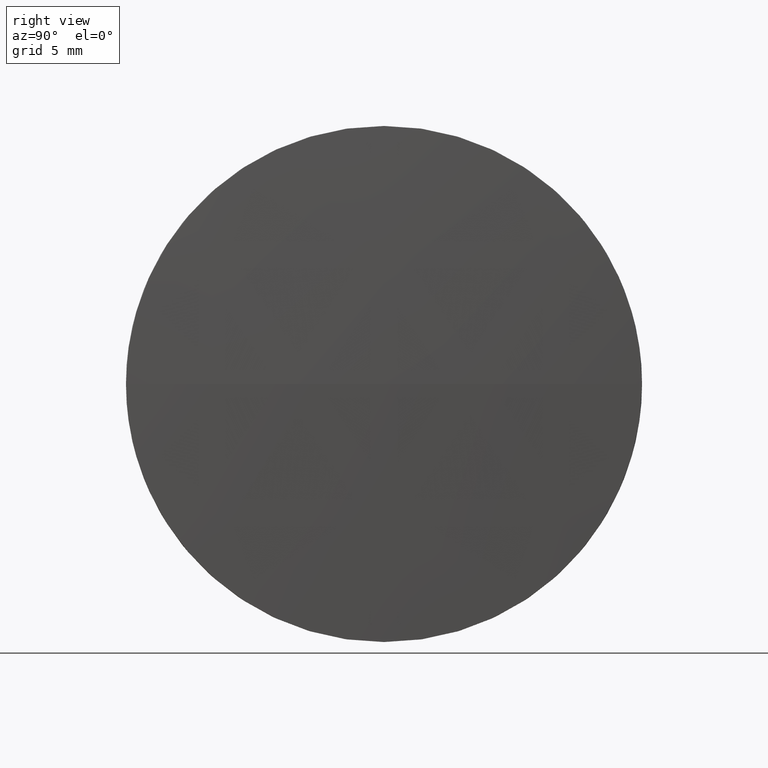
[diagram: clean part render]
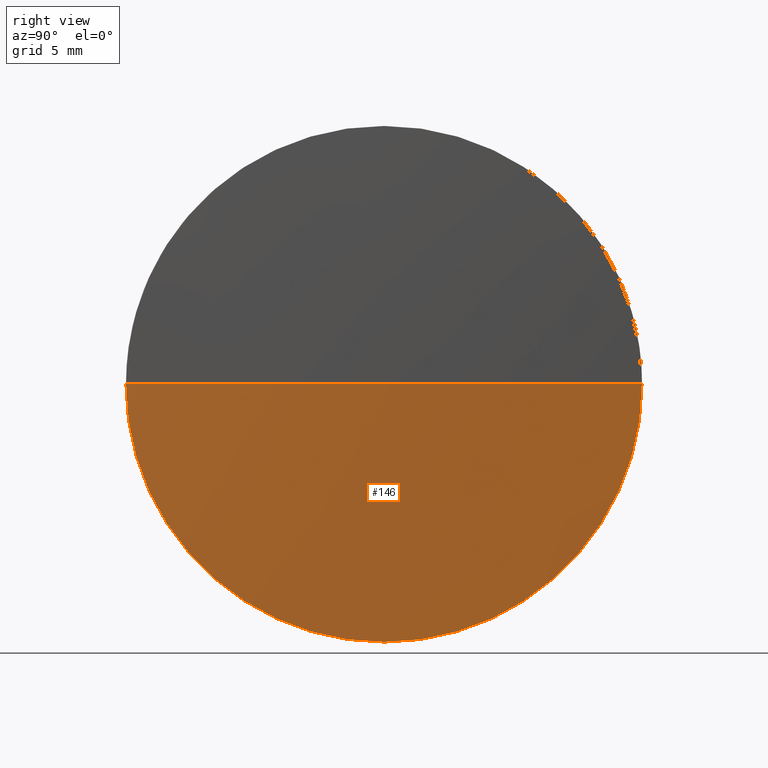
[diagram: same view with one face highlighted and labeled with its STEP entity id]
A machine part, right view. The second image highlights one B-rep face of the part: STEP entity #146.
In plain terms, the highlighted spherical surface has radius 260.567 mm.
Its self-contained STEP definition (entity closure, byte-faithful):
#1 = CARTESIAN_POINT ( 'NONE',  ( 217.1658760232263000, 56.21778746480520500, 0.0000000000000000000 ) ) ;
#8 = DIRECTION ( 'NONE',  ( 0.0000000000000000000, 0.0000000000000000000, 1.000000000000000000 ) ) ;
#11 = EDGE_LOOP ( 'NONE', ( #125, #179, #38, #167 ) ) ;
#17 = CARTESIAN_POINT ( 'NONE',  ( 477.4325426898954600, 43.71778746480575300, -1.530808498934124900E-015 ) ) ;
#19 = CARTESIAN_POINT ( 'NONE',  ( 477.4325426898954600, 56.21778746480561000, 0.0000000000000000000 ) ) ;
#35 = CIRCLE ( 'NONE', #74, 260.5666666666690500 ) ;
#38 = ORIENTED_EDGE ( 'NONE', *, *, #178, .F. ) ;
#41 = DIRECTION ( 'NONE',  ( 0.0000000000000000000, 1.224646799147353200E-016, -1.000000000000000000 ) ) ;
#45 = DIRECTION ( 'NONE',  ( -0.0000000000000000000, 0.0000000000000000000, 1.000000000000000000 ) ) ;
#52 = CARTESIAN_POINT ( 'NONE',  ( 477.4325426898954600, 56.21778746480561000, 0.0000000000000000000 ) ) ;
#54 = EDGE_CURVE ( 'NONE', #173, #57, #172, .T. ) ;
#57 = VERTEX_POINT ( 'NONE', #168 ) ;
#59 = DIRECTION ( 'NONE',  ( 0.0000000000000000000, 1.000000000000000000, 0.0000000000000000000 ) ) ;
#74 = AXIS2_PLACEMENT_3D ( 'NONE', #90, #41, #107 ) ;
#76 = SPHERICAL_SURFACE ( 'NONE', #184, 260.5666666666690500 ) ;
#78 = DIRECTION ( 'NONE',  ( 1.000000000000000000, 0.0000000000000000000, 0.0000000000000000000 ) ) ;
#84 = CIRCLE ( 'NONE', #106, 260.5666666666690500 ) ;
#86 = DIRECTION ( 'NONE',  ( -1.000000000000000000, -0.0000000000000000000, -0.0000000000000000000 ) ) ;
#90 = CARTESIAN_POINT ( 'NONE',  ( 217.1658760232263000, 56.21778746480520500, 0.0000000000000000000 ) ) ;
#91 = DIRECTION ( 'NONE',  ( -0.0000000000000000000, 0.0000000000000000000, -1.000000000000000000 ) ) ;
#99 = CIRCLE ( 'NONE', #114, 12.50000000000000400 ) ;
#104 = CARTESIAN_POINT ( 'NONE',  ( 217.1658760232263000, 56.21778746480520500, 0.0000000000000000000 ) ) ;
#106 = AXIS2_PLACEMENT_3D ( 'NONE', #1, #45, #78 ) ;
#107 = DIRECTION ( 'NONE',  ( 0.0000000000000000000, 1.000000000000000000, 1.224646799147353200E-016 ) ) ;
#112 = VERTEX_POINT ( 'NONE', #117 ) ;
#114 = AXIS2_PLACEMENT_3D ( 'NONE', #19, #118, #152 ) ;
#117 = CARTESIAN_POINT ( 'NONE',  ( 477.7325426898954100, 56.21778746480522000, 0.0000000000000000000 ) ) ;
#118 = DIRECTION ( 'NONE',  ( -1.000000000000000000, -0.0000000000000000000, -0.0000000000000000000 ) ) ;
#125 = ORIENTED_EDGE ( 'NONE', *, *, #143, .F. ) ;
#126 = AXIS2_PLACEMENT_3D ( 'NONE', #52, #86, #8 ) ;
#128 = EDGE_CURVE ( 'NONE', #112, #183, #35, .T. ) ;
#143 = EDGE_CURVE ( 'NONE', #112, #173, #84, .T. ) ;
#146 = ADVANCED_FACE ( 'NONE', ( #185 ), #76, .T. ) ;
#152 = DIRECTION ( 'NONE',  ( 0.0000000000000000000, 0.0000000000000000000, 1.000000000000000000 ) ) ;
#167 = ORIENTED_EDGE ( 'NONE', *, *, #54, .F. ) ;
#168 = CARTESIAN_POINT ( 'NONE',  ( 477.4325426898954600, 56.21778746480561000, -12.50000000000000400 ) ) ;
#172 = CIRCLE ( 'NONE', #126, 12.50000000000000400 ) ;
#173 = VERTEX_POINT ( 'NONE', #186 ) ;
#178 = EDGE_CURVE ( 'NONE', #57, #183, #99, .T. ) ;
#179 = ORIENTED_EDGE ( 'NONE', *, *, #128, .T. ) ;
#183 = VERTEX_POINT ( 'NONE', #17 ) ;
#184 = AXIS2_PLACEMENT_3D ( 'NONE', #104, #91, #59 ) ;
#185 = FACE_OUTER_BOUND ( 'NONE', #11, .T. ) ;
#186 = CARTESIAN_POINT ( 'NONE',  ( 477.4325426898954600, 68.71778746480505600, 0.0000000000000000000 ) ) ;